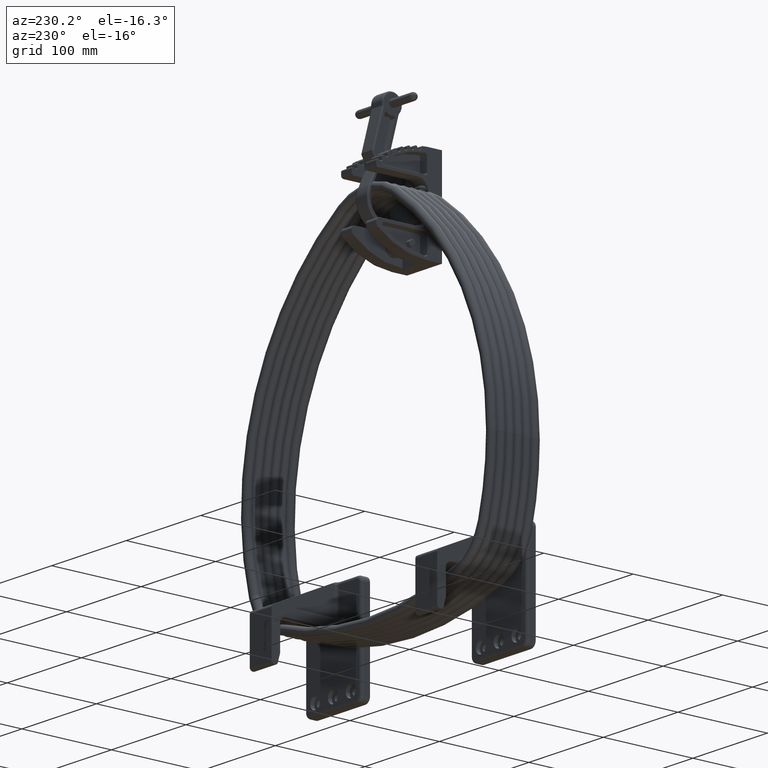
[diagram: clean part render]
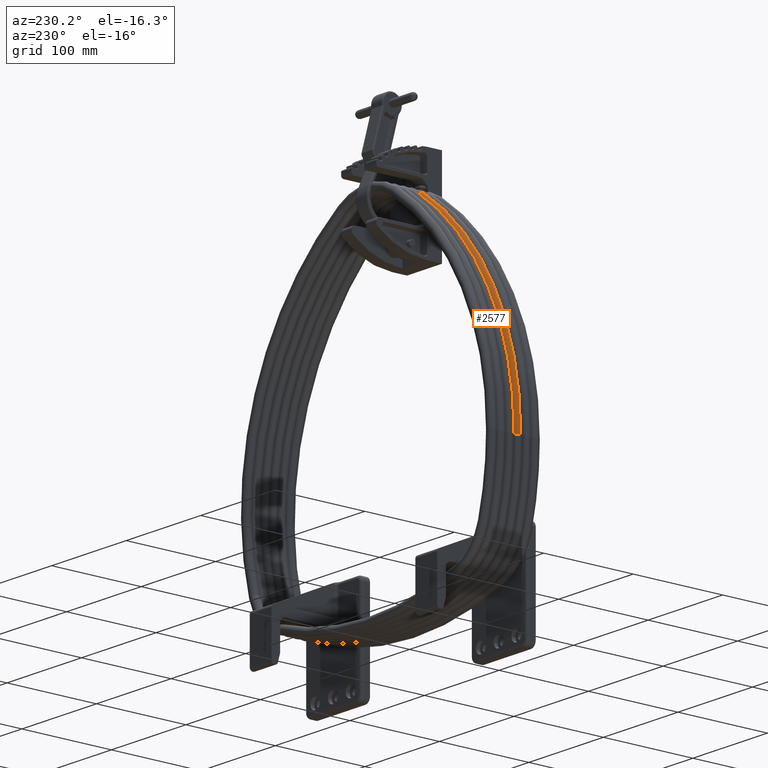
[diagram: same view with one face highlighted and labeled with its STEP entity id]
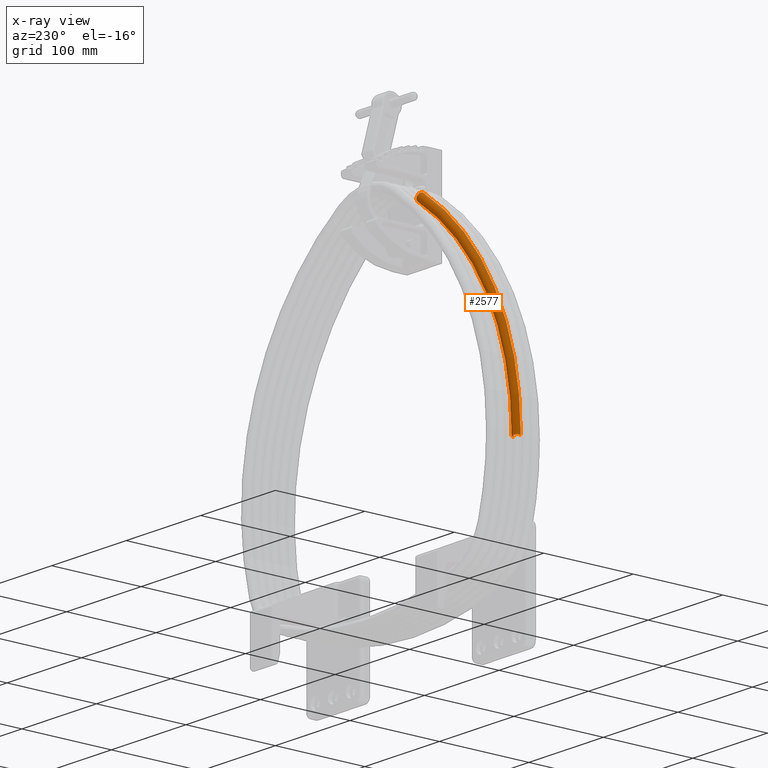
[diagram: x-ray of the same camera — body ghosted, the highlighted face saturated]
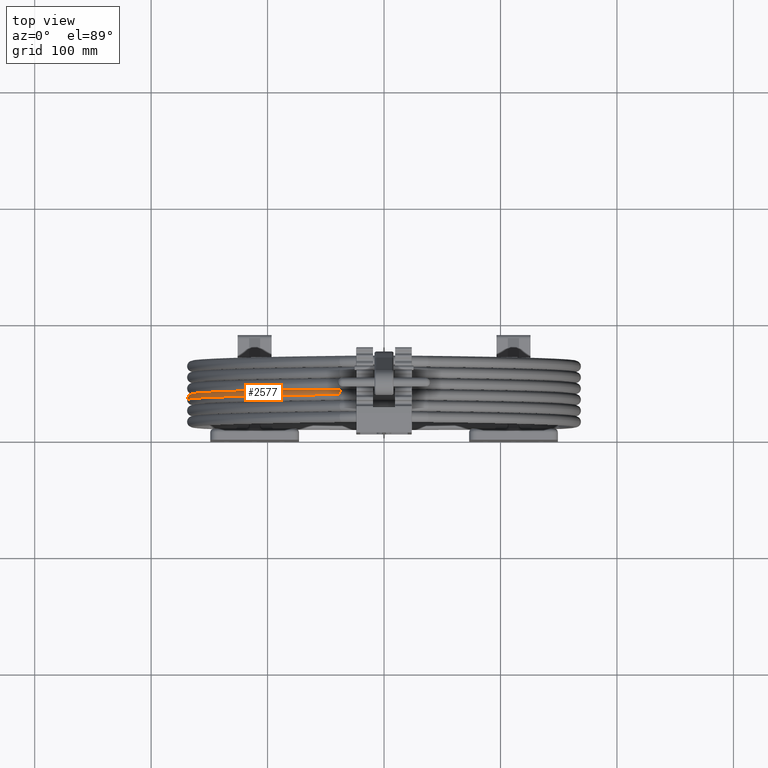
[diagram: same view with one face highlighted and labeled with its STEP entity id]
A machine part, auxiliary view. The second image highlights one B-rep face of the part: STEP entity #2577.
The next image is the same camera in x-ray: the body ghosted, the highlighted face saturated — about 0% of this face is hidden behind the body in this view.
A second angle (top view) of the same face is appended — the face is thin or edge-on in the first view.
In plain terms, the highlighted toroidal blend (fillet) surface has major radius 292.1 mm and minor (blend) radius 4.7625 mm.
Its self-contained STEP definition (entity closure, byte-faithful):
#1997 = CARTESIAN_POINT ( 'NONE',  ( -6.470741725853117500, -0.5363171817178108400, 0.0000000000000000000 ) ) ;
#2004 = DIRECTION ( 'NONE',  ( 0.0000000000000000000, -1.000000000000000000, 0.0000000000000000000 ) ) ;
#2005 = DIRECTION ( 'NONE',  ( 0.0000000000000000000, 0.0000000000000000000, -1.000000000000000000 ) ) ;
#2577 = ADVANCED_FACE ( 'NONE', ( #5787 ), #5784, .T. ) ;
#2728 = DIRECTION ( 'NONE',  ( -0.0000000000000000000, -0.0000000000000000000, -1.000000000000000000 ) ) ;
#2729 = DIRECTION ( 'NONE',  ( -1.000000000000000000, 0.0000000000000000000, 0.0000000000000000000 ) ) ;
#2742 = CARTESIAN_POINT ( 'NONE',  ( 5.029258274147628600, -0.5363171817178108400, 0.0000000000000000000 ) ) ;
#4946 = EDGE_CURVE ( 'NONE', #32058, #31866, #22298, .T. ) ;
#4947 = EDGE_CURVE ( 'NONE', #32084, #31896, #22299, .T. ) ;
#4948 = EDGE_CURVE ( 'NONE', #32084, #32058, #22301, .T. ) ;
#5356 = AXIS2_PLACEMENT_3D ( 'NONE', #21709, #21711, #21712 ) ;
#5357 = AXIS2_PLACEMENT_3D ( 'NONE', #21702, #21705, #21707 ) ;
#5358 = AXIS2_PLACEMENT_3D ( 'NONE', #21691, #21698, #21700 ) ;
#5784 = TOROIDAL_SURFACE ( 'NONE', #8895, 11.50000000000074600, 0.1874999999999999200 ) ;
#5787 = FACE_OUTER_BOUND ( 'NONE', #18032, .T. ) ;
#8895 = AXIS2_PLACEMENT_3D ( 'NONE', #2742, #2728, #2729 ) ;
#9897 = EDGE_CURVE ( 'NONE', #31866, #31896, #30485, .T. ) ;
#15591 = CARTESIAN_POINT ( 'NONE',  ( -6.283241725853117500, -0.5363171817178108400, 2.296212748401283400E-017 ) ) ;
#15598 = CARTESIAN_POINT ( 'NONE',  ( -6.658241725853117500, -0.5363171817178108400, 0.0000000000000000000 ) ) ;
#16841 = CARTESIAN_POINT ( 'NONE',  ( -1.292239973218781900, -9.917751835253499200, 2.296212748401285900E-017 ) ) ;
#16867 = CARTESIAN_POINT ( 'NONE',  ( -1.501792401308262200, -10.22873861934858500, 0.0000000000000000000 ) ) ;
#18032 = EDGE_LOOP ( 'NONE', ( #28491, #28492, #28493, #28494 ) ) ;
#21691 = CARTESIAN_POINT ( 'NONE',  ( 5.029258274147628600, -0.5363171817178108400, 2.296212748401286200E-017 ) ) ;
#21698 = DIRECTION ( 'NONE',  ( -0.0000000000000000000, -0.0000000000000000000, -1.000000000000000000 ) ) ;
#21700 = DIRECTION ( 'NONE',  ( -1.000000000000000000, 0.0000000000000000000, 0.0000000000000000000 ) ) ;
#21702 = CARTESIAN_POINT ( 'NONE',  ( 5.029258274147628600, -0.5363171817178108400, 0.0000000000000000000 ) ) ;
#21705 = DIRECTION ( 'NONE',  ( -0.0000000000000000000, -0.0000000000000000000, -1.000000000000000000 ) ) ;
#21707 = DIRECTION ( 'NONE',  ( -1.000000000000000000, 0.0000000000000000000, 0.0000000000000000000 ) ) ;
#21709 = CARTESIAN_POINT ( 'NONE',  ( -1.397016187263521400, -10.07324522730104400, 0.0000000000000000000 ) ) ;
#21711 = DIRECTION ( 'NONE',  ( -0.8292980909202265500, 0.5588064749052821200, 0.0000000000000000000 ) ) ;
#21712 = DIRECTION ( 'NONE',  ( 0.0000000000000000000, 0.0000000000000000000, -1.000000000000000000 ) ) ;
#22298 = CIRCLE ( 'NONE', #5358, 11.31250000000074600 ) ;
#22299 = CIRCLE ( 'NONE', #5357, 11.68750000000074600 ) ;
#22301 = CIRCLE ( 'NONE', #5356, 0.1874999999999999200 ) ;
#28491 = ORIENTED_EDGE ( 'NONE', *, *, #4947, .F. ) ;
#28492 = ORIENTED_EDGE ( 'NONE', *, *, #4948, .T. ) ;
#28493 = ORIENTED_EDGE ( 'NONE', *, *, #4946, .T. ) ;
#28494 = ORIENTED_EDGE ( 'NONE', *, *, #9897, .T. ) ;
#28879 = AXIS2_PLACEMENT_3D ( 'NONE', #1997, #2004, #2005 ) ;
#30485 = CIRCLE ( 'NONE', #28879, 0.1874999999999999200 ) ;
#31866 = VERTEX_POINT ( 'NONE', #15591 ) ;
#31896 = VERTEX_POINT ( 'NONE', #15598 ) ;
#32058 = VERTEX_POINT ( 'NONE', #16841 ) ;
#32084 = VERTEX_POINT ( 'NONE', #16867 ) ;